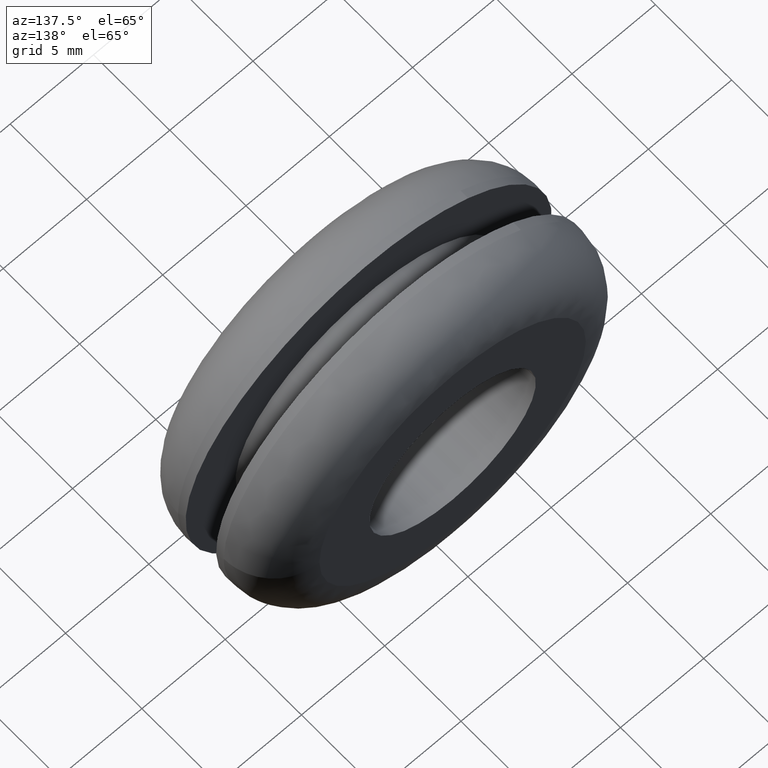
[diagram: clean part render]
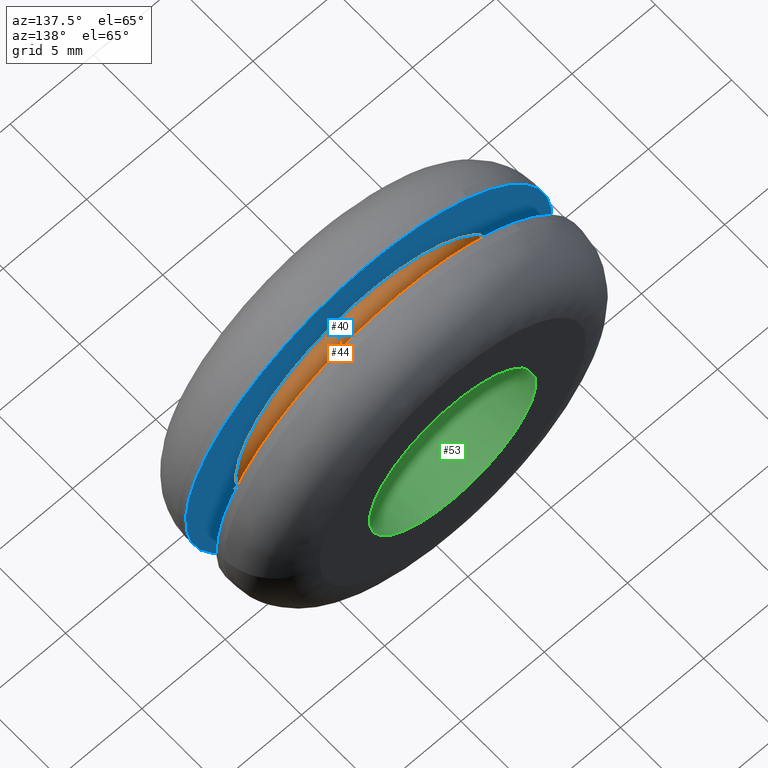
[diagram: same view with three faces highlighted in distinct colors, each labeled with its STEP entity id]
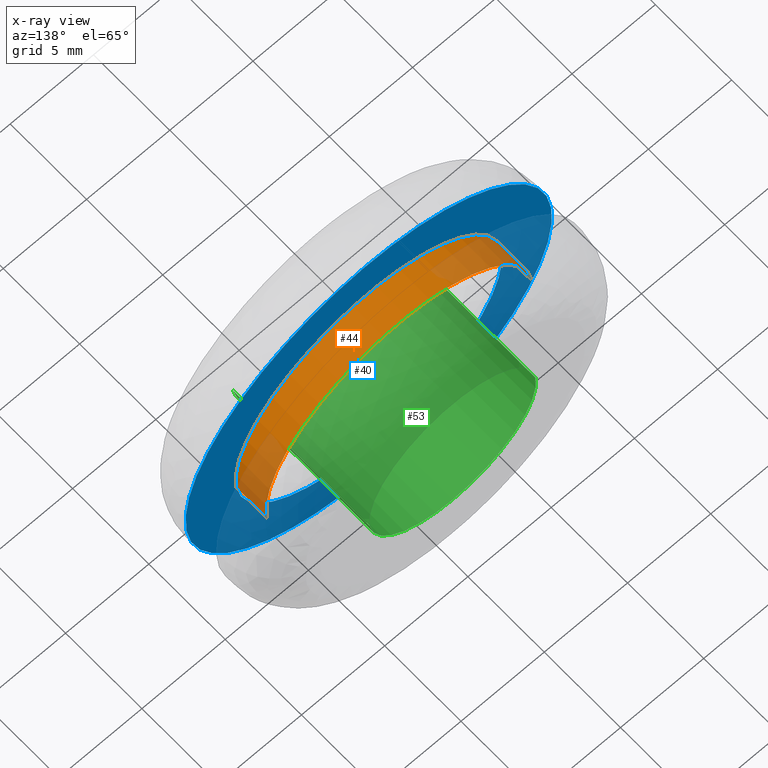
[diagram: x-ray of the same camera — body ghosted, the three highlighted faces saturated]
A machine part, auxiliary view with three faces highlighted in distinct colors.
The next image is the same camera in x-ray (body ghosted, the three faces saturated) — at least one of them is partly hidden behind the body in this view.
Their STEP definitions:

[orange] entity #44 — the highlighted cylindrical surface (partial cylindrical patch) has radius 8 mm, axis along (0, 1, 0).
#44=ADVANCED_FACE('',(#101),#100,.T.);
#100=CYLINDRICAL_SURFACE('',#247,8.00000000000E+000);
#101=FACE_OUTER_BOUND('',#248,.T.);
#244=CARTESIAN_POINT('',(-1.17922237256E-016,5.55000000000E+000,2.94682559238E-015));
#245=DIRECTION('',(4.19425315416E-016,1.00000000000E+000,4.46917487797E-015));
#246=DIRECTION('',(-9.93009526364E-001,-1.11022302463E-016,1.18034234657E-001));
#247=AXIS2_PLACEMENT_3D('',#244,#245,#246);
#248=EDGE_LOOP('',(#412,#413,#414,#415));
#412=ORIENTED_EDGE('',*,*,#500,.T.);
#413=ORIENTED_EDGE('',*,*,#514,.F.);
#414=ORIENTED_EDGE('',*,*,#494,.F.);
#415=ORIENTED_EDGE('',*,*,#515,.T.);
#494=EDGE_CURVE('',#563,#570,#571,.T.);
#500=EDGE_CURVE('',#612,#604,#613,.T.);
#514=EDGE_CURVE('',#570,#604,#709,.T.);
#515=EDGE_CURVE('',#563,#612,#715,.T.);
#563=VERTEX_POINT('',#902);
#570=VERTEX_POINT('',#907);
#571=CIRCLE('',#911,8.00000000000E+000);
#604=VERTEX_POINT('',#931);
#612=VERTEX_POINT('',#937);
#613=CIRCLE('',#941,8.00000000000E+000);
#709=(BOUNDED_CURVE() B_SPLINE_CURVE(1,(#1006,#1007),.UNSPECIFIED.,.F.,.F.) B_SPLINE_CURVE_WITH_KNOTS((2,2),(8.33333532020E-002,9.16666656883E-001),.UNSPECIFIED.) CURVE() GEOMETRIC_REPRESENTATION_ITEM() RATIONAL_B_SPLINE_CURVE((1.00000000000E+000,1.00000000000E+000)) REPRESENTATION_ITEM('') );
#715=(BOUNDED_CURVE() B_SPLINE_CURVE(1,(#1008,#1009),.UNSPECIFIED.,.F.,.F.) B_SPLINE_CURVE_WITH_KNOTS((2,2),(8.33333333340E-002,9.16666666667E-001),.UNSPECIFIED.) CURVE() GEOMETRIC_REPRESENTATION_ITEM() RATIONAL_B_SPLINE_CURVE((7.50000000000E-001,7.50000000000E-001)) REPRESENTATION_ITEM('') );
#902=CARTESIAN_POINT('',(7.94391288838E+000,3.50000000000E+000,-9.45646880083E-001));
#907=CARTESIAN_POINT('',(-7.94407621091E+000,3.50000000000E+000,9.44273877204E-001));
#908=CARTESIAN_POINT('',(7.68718422250E-013,3.50000000000E+000,1.68975944348E-012));
#909=DIRECTION('',(1.94040762156E-014,-1.00000000000E+000,1.31735135865E-013));
#910=DIRECTION('',(-9.60898027813E-014,-1.31735135865E-013,-1.00000000000E+000));
#911=AXIS2_PLACEMENT_3D('',#908,#909,#910);
#931=CARTESIAN_POINT('',(-7.94407621091E+000,5.50000000000E+000,9.44273877204E-001));
#937=CARTESIAN_POINT('',(7.94391288838E+000,5.50000000000E+000,-9.45646880083E-001));
#938=CARTESIAN_POINT('',(7.49622586227E-013,5.50000000000E+000,1.64623870091E-012));
#939=DIRECTION('',(5.55971536933E-017,-1.00000000000E+000,4.67735059724E-016));
#940=DIRECTION('',(-9.35640454003E-014,-4.67735059724E-016,-1.00000000000E+000));
#941=AXIS2_PLACEMENT_3D('',#938,#939,#940);
#1006=CARTESIAN_POINT('',(-7.94407621091E+000,3.50000004768E+000,9.44273877254E-001));
#1007=CARTESIAN_POINT('',(-7.94407621091E+000,5.49999997652E+000,9.44273877254E-001));
#1008=CARTESIAN_POINT('',(7.94407621091E+000,3.50000000000E+000,-9.44273877254E-001));
#1009=CARTESIAN_POINT('',(7.94407621091E+000,5.50000000000E+000,-9.44273877254E-001));

[blue] entity #40 — the highlighted planar face has unit normal (0, -1, 0).
#40=ADVANCED_FACE('',(#57,#58),#56,.F.);
#56=PLANE('',#223);
#57=FACE_OUTER_BOUND('',#224,.T.);
#58=FACE_BOUND('',#225,.T.);
#220=CARTESIAN_POINT('',(-2.28630706599E+001,3.50000000000E+000,2.53000000000E+001));
#221=DIRECTION('',(0.00000000000E+000,-1.00000000000E+000,0.00000000000E+000));
#222=DIRECTION('',(0.00000000000E+000,0.00000000000E+000,-1.00000000000E+000));
#223=AXIS2_PLACEMENT_3D('',#220,#221,#222);
#224=EDGE_LOOP('',(#388,#389,#390));
#225=EDGE_LOOP('',(#391,#392,#393));
#388=ORIENTED_EDGE('',*,*,#490,.F.);
#389=ORIENTED_EDGE('',*,*,#491,.F.);
#390=ORIENTED_EDGE('',*,*,#492,.F.);
#391=ORIENTED_EDGE('',*,*,#493,.T.);
#392=ORIENTED_EDGE('',*,*,#494,.T.);
#393=ORIENTED_EDGE('',*,*,#495,.T.);
#490=EDGE_CURVE('',#541,#542,#543,.T.);
#491=EDGE_CURVE('',#549,#541,#550,.T.);
#492=EDGE_CURVE('',#542,#549,#556,.T.);
#493=EDGE_CURVE('',#562,#563,#564,.T.);
#494=EDGE_CURVE('',#563,#570,#571,.T.);
#495=EDGE_CURVE('',#570,#562,#577,.T.);
#541=VERTEX_POINT('',#886);
#542=VERTEX_POINT('',#887);
#543=CIRCLE('',#891,1.10000000000E+001);
#549=VERTEX_POINT('',#892);
#550=CIRCLE('',#896,1.10000000000E+001);
#556=CIRCLE('',#900,1.10000000000E+001);
#562=VERTEX_POINT('',#901);
#563=VERTEX_POINT('',#902);
#564=CIRCLE('',#906,8.00000000000E+000);
#570=VERTEX_POINT('',#907);
#571=CIRCLE('',#911,8.00000000000E+000);
#577=CIRCLE('',#915,8.00000000000E+000);
#886=CARTESIAN_POINT('',(-5.97001746692E+000,3.50000000000E+000,9.23898757682E+000));
#887=CARTESIAN_POINT('',(-1.77635683940E-015,3.50000000000E+000,-1.10000000000E+001));
#888=CARTESIAN_POINT('',(8.88178419700E-016,3.50000000000E+000,3.77475828373E-015));
#889=DIRECTION('',(2.79051516876E-017,-1.00000000000E+000,-3.00352140566E-017));
#890=DIRECTION('',(7.77156117238E-016,3.00352140566E-017,-1.00000000000E+000));
#891=AXIS2_PLACEMENT_3D('',#888,#889,#890);
#892=CARTESIAN_POINT('',(5.97279914907E+000,3.50000000000E+000,-9.23718952522E+000));
#893=CARTESIAN_POINT('',(8.88178419700E-016,3.50000000000E+000,3.77475828373E-015));
#894=DIRECTION('',(2.79051516876E-017,-1.00000000000E+000,-3.00352140566E-017));
#895=DIRECTION('',(7.77156117238E-016,3.00352140566E-017,-1.00000000000E+000));
#896=AXIS2_PLACEMENT_3D('',#893,#894,#895);
#897=CARTESIAN_POINT('',(8.88178419700E-016,3.50000000000E+000,3.77475828373E-015));
#898=DIRECTION('',(2.79051516876E-017,-1.00000000000E+000,-3.00352140566E-017));
#899=DIRECTION('',(7.77156117238E-016,3.00352140566E-017,-1.00000000000E+000));
#900=AXIS2_PLACEMENT_3D('',#897,#898,#899);
#901=CARTESIAN_POINT('',(-2.88657986403E-015,3.50000000000E+000,-8.00000000000E+000));
#902=CARTESIAN_POINT('',(7.94391288838E+000,3.50000000000E+000,-9.45646880083E-001));
#903=CARTESIAN_POINT('',(7.68718422250E-013,3.50000000000E+000,1.68975944348E-012));
#904=DIRECTION('',(1.94040762156E-014,-1.00000000000E+000,1.31735135865E-013));
#905=DIRECTION('',(-9.60898027813E-014,-1.31735135865E-013,-1.00000000000E+000));
#906=AXIS2_PLACEMENT_3D('',#903,#904,#905);
#907=CARTESIAN_POINT('',(-7.94407621091E+000,3.50000000000E+000,9.44273877204E-001));
#908=CARTESIAN_POINT('',(7.68718422250E-013,3.50000000000E+000,1.68975944348E-012));
#909=DIRECTION('',(1.94040762156E-014,-1.00000000000E+000,1.31735135865E-013));
#910=DIRECTION('',(-9.60898027813E-014,-1.31735135865E-013,-1.00000000000E+000));
#911=AXIS2_PLACEMENT_3D('',#908,#909,#910);
#912=CARTESIAN_POINT('',(7.68718422250E-013,3.50000000000E+000,1.68975944348E-012));
#913=DIRECTION('',(1.94040762156E-014,-1.00000000000E+000,1.31735135865E-013));
#914=DIRECTION('',(-9.60898027813E-014,-1.31735135865E-013,-1.00000000000E+000));
#915=AXIS2_PLACEMENT_3D('',#912,#913,#914);

[green] entity #53 — the highlighted cylindrical surface (partial cylindrical patch) has radius 5 mm, axis along (0, 1, 0).
#53=ADVANCED_FACE('',(#191),#190,.F.);
#190=CYLINDRICAL_SURFACE('',#376,5.00000000000E+000);
#191=FACE_OUTER_BOUND('',#377,.T.);
#373=CARTESIAN_POINT('',(3.11873698470E-015,9.22500000000E+000,3.29632553954E-014));
#374=DIRECTION('',(6.44980748637E-016,1.00000000000E+000,6.93110531903E-015));
#375=DIRECTION('',(-9.93009526364E-001,-1.77635683940E-016,1.18034234657E-001));
#376=AXIS2_PLACEMENT_3D('',#373,#374,#375);
#377=EDGE_LOOP('',(#470,#471,#472,#473,#474,#475));
#470=ORIENTED_EDGE('',*,*,#505,.F.);
#471=ORIENTED_EDGE('',*,*,#507,.F.);
#472=ORIENTED_EDGE('',*,*,#537,.F.);
#473=ORIENTED_EDGE('',*,*,#511,.T.);
#474=ORIENTED_EDGE('',*,*,#513,.T.);
#475=ORIENTED_EDGE('',*,*,#538,.T.);
#505=EDGE_CURVE('',#646,#647,#648,.T.);
#507=EDGE_CURVE('',#654,#646,#661,.T.);
#511=EDGE_CURVE('',#688,#689,#690,.T.);
#513=EDGE_CURVE('',#689,#696,#703,.T.);
#537=EDGE_CURVE('',#688,#654,#862,.T.);
#538=EDGE_CURVE('',#696,#647,#868,.T.);
#646=VERTEX_POINT('',#961);
#647=VERTEX_POINT('',#962);
#648=CIRCLE('',#966,4.99999999999E+000);
#654=VERTEX_POINT('',#967);
#661=CIRCLE('',#975,4.99999999999E+000);
#688=VERTEX_POINT('',#991);
#689=VERTEX_POINT('',#992);
#690=CIRCLE('',#996,4.99999999999E+000);
#696=VERTEX_POINT('',#997);
#703=CIRCLE('',#1005,4.99999999999E+000);
#862=(BOUNDED_CURVE() B_SPLINE_CURVE(1,(#1107,#1108),.UNSPECIFIED.,.F.,.F.) B_SPLINE_CURVE_WITH_KNOTS((2,2),(8.33333343261E-002,9.16666664274E-001),.UNSPECIFIED.) CURVE() GEOMETRIC_REPRESENTATION_ITEM() RATIONAL_B_SPLINE_CURVE((1.00000000000E+000,1.00000000000E+000)) REPRESENTATION_ITEM('') );
#868=(BOUNDED_CURVE() B_SPLINE_CURVE(1,(#1109,#1110),.UNSPECIFIED.,.F.,.F.) B_SPLINE_CURVE_WITH_KNOTS((2,2),(8.33333333333E-002,9.16666666667E-001),.UNSPECIFIED.) CURVE() GEOMETRIC_REPRESENTATION_ITEM() RATIONAL_B_SPLINE_CURVE((7.50000000000E-001,7.50000000000E-001)) REPRESENTATION_ITEM('') );
#961=CARTESIAN_POINT('',(-3.66373598126E-015,9.00000000000E+000,-4.99999999998E+000));
#962=CARTESIAN_POINT('',(4.96494555452E+000,9.00000000000E+000,-5.91029306010E-001));
#963=CARTESIAN_POINT('',(4.73932004752E-012,9.00000000000E+000,1.04236619336E-011));
#964=DIRECTION('',(1.32448161837E-014,-1.00000000000E+000,8.73492756815E-014));
#965=DIRECTION('',(-9.48227607545E-013,-8.73492756815E-014,-1.00000000000E+000));
#966=AXIS2_PLACEMENT_3D('',#963,#964,#965);
#967=CARTESIAN_POINT('',(-4.96504784763E+000,9.00000000000E+000,5.90169357593E-001));
#972=CARTESIAN_POINT('',(4.73932004752E-012,9.00000000000E+000,1.04236619336E-011));
#973=DIRECTION('',(1.32448161837E-014,-1.00000000000E+000,8.73492756815E-014));
#974=DIRECTION('',(-9.48227607545E-013,-8.73492756815E-014,-1.00000000000E+000));
#975=AXIS2_PLACEMENT_3D('',#972,#973,#974);
#991=CARTESIAN_POINT('',(-4.96504784763E+000,-9.37007096339E-016,5.90169357593E-001));
#992=CARTESIAN_POINT('',(-1.77635683940E-015,-1.08739239261E-015,-4.99999999998E+000));
#993=CARTESIAN_POINT('',(4.62296867454E-012,-9.32370148532E-016,1.01727515300E-011));
#994=DIRECTION('',(4.61925527207E-018,-1.00000000000E+000,3.10044488150E-017));
#995=DIRECTION('',(-9.24565979332E-013,-3.10044488150E-017,-1.00000000000E+000));
#996=AXIS2_PLACEMENT_3D('',#993,#994,#995);
#997=CARTESIAN_POINT('',(4.96494555452E+000,-9.27760335470E-016,-5.91029306010E-001));
#1002=CARTESIAN_POINT('',(4.62296867454E-012,-9.32370148532E-016,1.01727515300E-011));
#1003=DIRECTION('',(4.61925527207E-018,-1.00000000000E+000,3.10044488150E-017));
#1004=DIRECTION('',(-9.24565979332E-013,-3.10044488150E-017,-1.00000000000E+000));
#1005=AXIS2_PLACEMENT_3D('',#1002,#1003,#1004);
#1107=CARTESIAN_POINT('',(-4.96504763182E+000,1.07215923917E-008,5.90171173284E-001));
#1108=CARTESIAN_POINT('',(-4.96504763182E+000,8.99999997416E+000,5.90171173284E-001));
#1109=CARTESIAN_POINT('',(4.96504763182E+000,-1.03620815632E-014,-5.90171173284E-001));
#1110=CARTESIAN_POINT('',(4.96504763182E+000,9.00000000000E+000,-5.90171173284E-001));